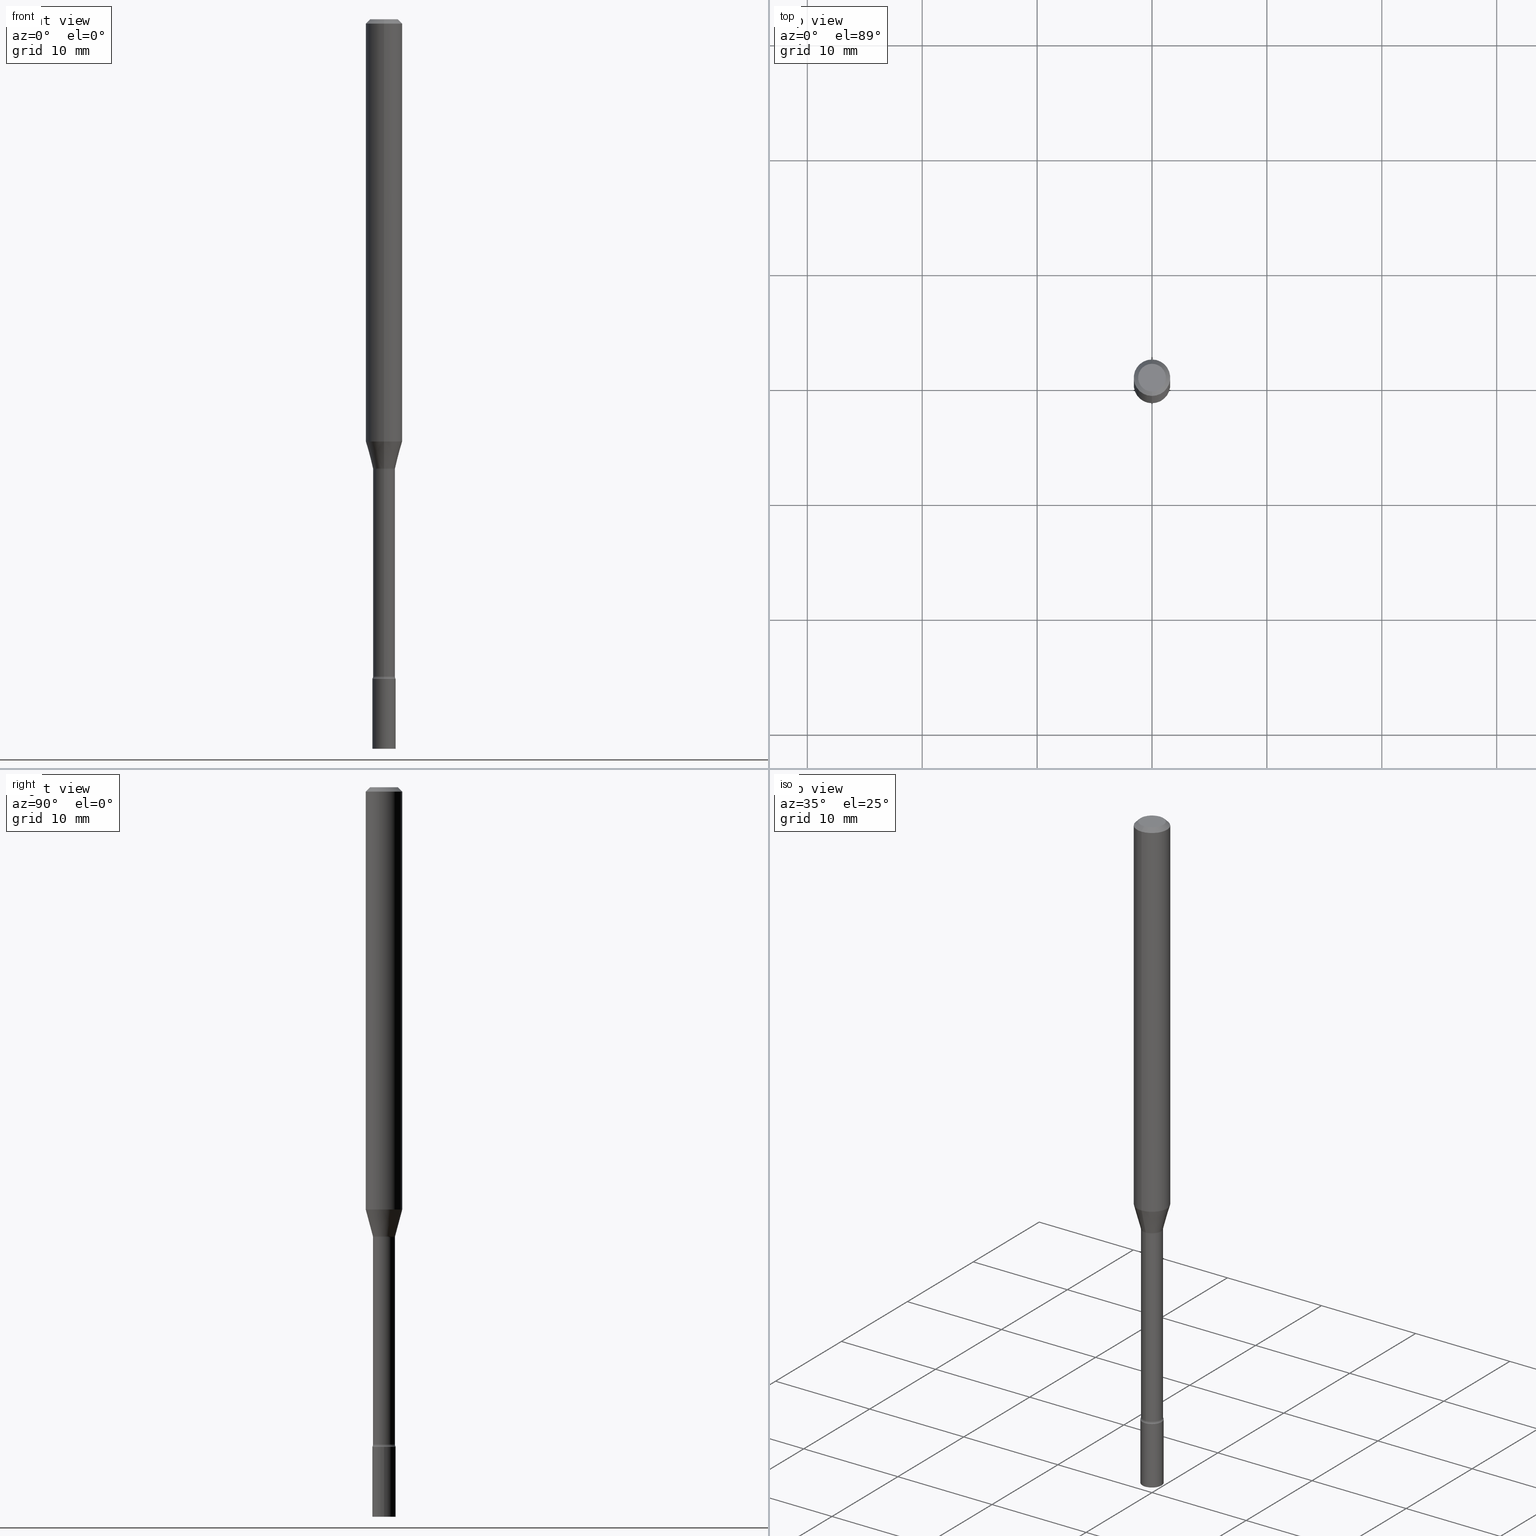
[diagram: canonical four-view strip — front | top / right | iso, engineering-drawing reading convention]
A machine part, canonical four-view strip (front | top / right | iso — engineering-drawing reading convention). The complete STEP part file that produces these views, byte-faithful:
ISO-10303-21;
HEADER;
FILE_DESCRIPTION (( 'STEP AP203' ),
    '1' );
FILE_NAME ('09874.STEP',
    '2024-03-09T02:38:11',
    ( '' ),
    ( '' ),
    'SwSTEP 2.0',
    'SolidWorks 2023',
    '' );
FILE_SCHEMA (( 'CONFIG_CONTROL_DESIGN' ));
ENDSEC;

DATA;
#1 = CARTESIAN_POINT ( 'NONE',  ( 3.761378994903739618E-29, -5.370190104764113807E-15, -1.538092501787273081 ) ) ;
#2 = DIRECTION ( 'NONE',  ( -2.445482954070053556E-29, 3.491461078266697012E-15, 1.000000000000000000 ) ) ;
#3 = AXIS2_PLACEMENT_3D ( 'NONE', #40, #356, #159 ) ;
#4 = AXIS2_PLACEMENT_3D ( 'NONE', #1, #308, #5 ) ;
#5 = DIRECTION ( 'NONE',  ( -6.982962677686265922E-15, -1.000000000000000000, 0.000000000000000000 ) ) ;
#6 = DIRECTION ( 'NONE',  ( -2.445482954070053556E-29, 3.491461078266697012E-15, 1.000000000000000000 ) ) ;
#7 = CALENDAR_DATE ( 2024, 8, 3 ) ;
#8 = ORIENTED_EDGE ( 'NONE', *, *, #255, .F. ) ;
#9 = DIRECTION ( 'NONE',  ( -2.445482954070053837E-29, 3.491461078266697012E-15, 1.000000000000000000 ) ) ;
#10 = CIRCLE ( 'NONE', #293, 0.01499999999999998557 ) ;
#11 = AXIS2_PLACEMENT_3D ( 'NONE', #460, #172, #328 ) ;
#12 = EDGE_LOOP ( 'NONE', ( #405, #448, #152, #379 ) ) ;
#13 = UNCERTAINTY_MEASURE_WITH_UNIT (LENGTH_MEASURE( 1.000000000000000082E-05 ), #478, 'distance_accuracy_value', 'NONE');
#14 = VERTEX_POINT ( 'NONE', #374 ) ;
#15 = EDGE_CURVE ( 'NONE', #111, #75, #138, .T. ) ;
#16 = LINE ( 'NONE', #165, #429 ) ;
#17 = EDGE_CURVE ( 'NONE', #195, #14, #16, .T. ) ;
#18 = EDGE_LOOP ( 'NONE', ( #20, #412, #106, #297 ) ) ;
#19 = ORGANIZATION ( 'UNSPECIFIED', 'UNSPECIFIED', '' ) ;
#20 = ORIENTED_EDGE ( 'NONE', *, *, #473, .F. ) ;
#21 = ORIENTED_EDGE ( 'NONE', *, *, #49, .F. ) ;
#22 = CARTESIAN_POINT ( 'NONE',  ( 3.761378994903739618E-29, -5.370190104764113807E-15, -1.538092501787273081 ) ) ;
#23 = DATE_TIME_ROLE ( 'classification_date' ) ;
#24 = ORIENTED_EDGE ( 'NONE', *, *, #220, .F. ) ;
#25 = CARTESIAN_POINT ( 'NONE',  ( -4.364351673553565158E-16, -0.06250000000000509315, -1.447071934891535072 ) ) ;
#26 = ADVANCED_FACE ( 'NONE', ( #52 ), #132, .T. ) ;
#27 = CC_DESIGN_APPROVAL ( #363, ( #228 ) ) ;
#28 = DIRECTION ( 'NONE',  ( 1.000000000000000000, -6.982962677686265922E-15, 4.876176775795935793E-29 ) ) ;
#29 = EDGE_LOOP ( 'NONE', ( #324, #518, #236, #227 ) ) ;
#30 = DIRECTION ( 'NONE',  ( 1.000000000000000000, -6.982962677686259611E-15, 0.000000000000000000 ) ) ;
#31 = CARTESIAN_POINT ( 'NONE',  ( -3.673038368462599455E-16, -0.05260000000000539244, -1.541974787463810781 ) ) ;
#32 = VERTEX_POINT ( 'NONE', #323 ) ;
#33 = DIRECTION ( 'NONE',  ( 2.445482954070053276E-29, -3.491461078266697012E-15, -1.000000000000000000 ) ) ;
#34 = CC_DESIGN_PERSON_AND_ORGANIZATION_ASSIGNMENT ( #375, #213, ( #127 ) ) ;
#35 = ORIENTED_EDGE ( 'NONE', *, *, #519, .T. ) ;
#36 = APPLICATION_PROTOCOL_DEFINITION ( 'international standard', 'config_control_design', 1994, #89 ) ;
#37 = DIRECTION ( 'NONE',  ( -6.982962677686265922E-15, -1.000000000000000000, 3.491461078266697012E-15 ) ) ;
#38 = VECTOR ( 'NONE', #368, 39.37007874015748143 ) ;
#39 = CIRCLE ( 'NONE', #11, 0.06250000000000000000 ) ;
#40 = CARTESIAN_POINT ( 'NONE',  ( 0.000000000000000000, 0.000000000000000000, 0.000000000000000000 ) ) ;
#41 = EDGE_CURVE ( 'NONE', #223, #280, #167, .T. ) ;
#42 = CARTESIAN_POINT ( 'NONE',  ( 7.071082978708486082E-46, -1.009551547282941926E-31, -2.891487330525031219E-17 ) ) ;
#43 = FACE_OUTER_BOUND ( 'NONE', #459, .T. ) ;
#44 = VECTOR ( 'NONE', #477, 39.37007874015748143 ) ;
#45 = AXIS2_PLACEMENT_3D ( 'NONE', #335, #98, #498 ) ;
#46 = EDGE_LOOP ( 'NONE', ( #294, #225, #413, #208 ) ) ;
#47 = PERSON_AND_ORGANIZATION ( #435, #19 ) ;
#48 = CYLINDRICAL_SURFACE ( 'NONE', #377, 0.06250000000000000000 ) ;
#49 = EDGE_CURVE ( 'NONE', #136, #234, #102, .T. ) ;
#50 = VERTEX_POINT ( 'NONE', #462 ) ;
#51 = AXIS2_PLACEMENT_3D ( 'NONE', #285, #416, #218 ) ;
#52 = FACE_OUTER_BOUND ( 'NONE', #409, .T. ) ;
#53 = VERTEX_POINT ( 'NONE', #300 ) ;
#54 = APPROVAL_ROLE ( '' ) ;
#55 = ORIENTED_EDGE ( 'NONE', *, *, #131, .T. ) ;
#56 = CARTESIAN_POINT ( 'NONE',  ( 2.793185071075058985E-16, 0.03999999999999211131, -2.260000000000000675 ) ) ;
#57 = ORIENTED_EDGE ( 'NONE', *, *, #347, .F. ) ;
#58 = FACE_OUTER_BOUND ( 'NONE', #181, .T. ) ;
#59 = CIRCLE ( 'NONE', #45, 0.04000000000000000083 ) ;
#60 = ORIENTED_EDGE ( 'NONE', *, *, #327, .T. ) ;
#61 = DIRECTION ( 'NONE',  ( 7.105427357600997914E-15, 1.000000000000000000, 0.000000000000000000 ) ) ;
#62 = DIRECTION ( 'NONE',  ( -2.445482954070053837E-29, 3.491461078266697012E-15, 1.000000000000000000 ) ) ;
#63 = DIRECTION ( 'NONE',  ( -6.982962677686265133E-15, -1.000000000000000000, 0.000000000000000000 ) ) ;
#64 = ORIENTED_EDGE ( 'NONE', *, *, #17, .T. ) ;
#65 = CC_DESIGN_PERSON_AND_ORGANIZATION_ASSIGNMENT ( #287, #386, ( #198 ) ) ;
#66 = FACE_OUTER_BOUND ( 'NONE', #456, .T. ) ;
#67 = PERSON_AND_ORGANIZATION ( #435, #19 ) ;
#68 = ORIENTED_EDGE ( 'NONE', *, *, #240, .F. ) ;
#69 = DIRECTION ( 'NONE',  ( -2.445482954070053556E-29, 3.491461078266697012E-15, 1.000000000000000000 ) ) ;
#70 = AXIS2_PLACEMENT_3D ( 'NONE', #394, #69, #348 ) ;
#71 = APPROVAL_PERSON_ORGANIZATION ( #67, #419, #54 ) ;
#72 = CARTESIAN_POINT ( 'NONE',  ( 2.842170943040952512E-16, 0.03999999999999211131, -2.260000000000000675 ) ) ;
#73 = DIRECTION ( 'NONE',  ( -2.445468806185136597E-29, 3.491481338843145583E-15, 1.000000000000000000 ) ) ;
#74 = FACE_OUTER_BOUND ( 'NONE', #415, .T. ) ;
#75 = VERTEX_POINT ( 'NONE', #25 ) ;
#76 = DIRECTION ( 'NONE',  ( -2.445482954070053556E-29, 3.491461078266697012E-15, 1.000000000000000000 ) ) ;
#77 = VECTOR ( 'NONE', #224, 39.37007874015748143 ) ;
#78 = AXIS2_PLACEMENT_3D ( 'NONE', #509, #295, #511 ) ;
#79 = CARTESIAN_POINT ( 'NONE',  ( 0.04000000000000000083, -2.793185071074506290E-16, 1.950470710318374387E-30 ) ) ;
#80 = DIRECTION ( 'NONE',  ( -2.445482954070053556E-29, 3.491461078266697012E-15, 1.000000000000000000 ) ) ;
#81 = CIRCLE ( 'NONE', #340, 0.01500000000000003587 ) ;
#82 = COORDINATED_UNIVERSAL_TIME_OFFSET ( 5, 0, .BEHIND. ) ;
#83 = CARTESIAN_POINT ( 'NONE',  ( -4.287811248607203282E-16, -0.06250000000000005551, -0.01499999999999981209 ) ) ;
#84 = FACE_OUTER_BOUND ( 'NONE', #46, .T. ) ;
#85 = LENGTH_MEASURE_WITH_UNIT ( LENGTH_MEASURE( 0.02539999999999999897 ), #373 );
#86 = ORIENTED_EDGE ( 'NONE', *, *, #151, .T. ) ;
#87 = FACE_OUTER_BOUND ( 'NONE', #29, .T. ) ;
#88 = ORIENTED_EDGE ( 'NONE', *, *, #443, .F. ) ;
#89 = APPLICATION_CONTEXT ( 'configuration controlled 3d designs of mechanical parts and assemblies' ) ;
#90 = AXIS2_PLACEMENT_3D ( 'NONE', #191, #73, #400 ) ;
#91 = LOCAL_TIME ( 21, 38, 11.00000000000000000, #176 ) ;
#92 = DIRECTION ( 'NONE',  ( 2.438088387897960049E-29, -3.491481338843145188E-15, -1.000000000000000000 ) ) ;
#93 = CYLINDRICAL_SURFACE ( 'NONE', #51, 0.04000000000000000083 ) ;
#94 = FACE_OUTER_BOUND ( 'NONE', #108, .T. ) ;
#95 = COORDINATED_UNIVERSAL_TIME_OFFSET ( 5, 0, .BEHIND. ) ;
#96 = ORIENTED_EDGE ( 'NONE', *, *, #310, .T. ) ;
#97 = DATE_AND_TIME ( #502, #481 ) ;
#98 = DIRECTION ( 'NONE',  ( -2.445468806185136597E-29, 3.491481338843145583E-15, 1.000000000000000000 ) ) ;
#99 = SECURITY_CLASSIFICATION_LEVEL ( 'unclassified' ) ;
#100 = AXIS2_PLACEMENT_3D ( 'NONE', #56, #458, #282 ) ;
#101 = ORIENTED_EDGE ( 'NONE', *, *, #499, .T. ) ;
#102 = CIRCLE ( 'NONE', #175, 0.06250000000000000000 ) ;
#103 = DIRECTION ( 'NONE',  ( -6.982962677686265922E-15, -1.000000000000000000, 3.483106191921935554E-15 ) ) ;
#104 = AXIS2_PLACEMENT_3D ( 'NONE', #397, #184, #37 ) ;
#105 = DATE_AND_TIME ( #381, #114 ) ;
#106 = ORIENTED_EDGE ( 'NONE', *, *, #15, .T. ) ;
#107 = DIRECTION ( 'NONE',  ( -6.982962677686265922E-15, -1.000000000000000000, 3.491461078266697012E-15 ) ) ;
#108 = EDGE_LOOP ( 'NONE', ( #393, #319 ) ) ;
#109 = ADVANCED_FACE ( 'NONE', ( #58 ), #265, .T. ) ;
#110 = CARTESIAN_POINT ( 'NONE',  ( 0.04000000000000000083, -8.170066332892960135E-15, -2.260000000000000231 ) ) ;
#111 = VERTEX_POINT ( 'NONE', #504 ) ;
#112 = APPLICATION_CONTEXT ( 'configuration controlled 3d designs of mechanical parts and assemblies' ) ;
#113 = APPROVAL ( #320, 'UNSPECIFIED' ) ;
#114 = LOCAL_TIME ( 21, 38, 11.00000000000000000, #95 ) ;
#115 = DIRECTION ( 'NONE',  ( 6.982962677686265922E-15, 1.000000000000000000, -3.483106191921935554E-15 ) ) ;
#116 = EDGE_LOOP ( 'NONE', ( #101, #417, #306, #68 ) ) ;
#117 = EDGE_CURVE ( 'NONE', #234, #136, #302, .T. ) ;
#118 = CARTESIAN_POINT ( 'NONE',  ( 4.440892098500625669E-16, 0.06250000000000000000, -2.182163173916685633E-16 ) ) ;
#119 = DIRECTION ( 'NONE',  ( -6.982962677686265922E-15, -1.000000000000000000, 3.491461078266697012E-15 ) ) ;
#120 = CIRCLE ( 'NONE', #411, 0.06250000000000000000 ) ;
#121 = CIRCLE ( 'NONE', #222, 0.03760000000000009168 ) ;
#122 = EDGE_CURVE ( 'NONE', #32, #53, #81, .T. ) ;
#123 = DIRECTION ( 'NONE',  ( -6.982962677686265922E-15, -1.000000000000000000, 3.491461078266697012E-15 ) ) ;
#124 = DIRECTION ( 'NONE',  ( 6.982962677686265922E-15, 1.000000000000000000, -3.483106191921935554E-15 ) ) ;
#125 = CC_DESIGN_DATE_AND_TIME_ASSIGNMENT ( #344, #216, ( #228 ) ) ;
#126 = CIRCLE ( 'NONE', #259, 0.03811111260566397985 ) ;
#127 = PRODUCT ( '09874', '09874', '', ( #162 ) ) ;
#128 = CIRCLE ( 'NONE', #177, 0.03811111260566397985 ) ;
#129 = ORIENTED_EDGE ( 'NONE', *, *, #220, .T. ) ;
#130 = DIRECTION ( 'NONE',  ( 1.000000000000000000, -7.105427357601001070E-15, 4.926315260421581725E-29 ) ) ;
#131 = EDGE_CURVE ( 'NONE', #178, #234, #314, .T. ) ;
#132 = PLANE ( 'NONE',  #494 ) ;
#133 = PLANE ( 'NONE',  #100 ) ;
#134 =( GEOMETRIC_REPRESENTATION_CONTEXT ( 3 ) GLOBAL_UNCERTAINTY_ASSIGNED_CONTEXT ( ( #13 ) ) GLOBAL_UNIT_ASSIGNED_CONTEXT ( ( #478, #485, #366 ) ) REPRESENTATION_CONTEXT ( 'NONE', 'WORKASPACE' ) );
#135 = PERSON_AND_ORGANIZATION ( #435, #19 ) ;
#136 = VERTEX_POINT ( 'NONE', #430 ) ;
#137 = APPROVAL_ROLE ( '' ) ;
#138 = LINE ( 'NONE', #372, #38 ) ;
#139 = CARTESIAN_POINT ( 'NONE',  ( 4.440892098500982135E-16, 0.06249999999999995143, -0.01500000000000024751 ) ) ;
#140 = ORIENTED_EDGE ( 'NONE', *, *, #443, .T. ) ;
#141 = DIRECTION ( 'NONE',  ( -2.445482954070053556E-29, 3.491461078266697012E-15, 1.000000000000000000 ) ) ;
#142 = EDGE_CURVE ( 'NONE', #195, #50, #469, .T. ) ;
#143 = AXIS2_PLACEMENT_3D ( 'NONE', #425, #264, #30 ) ;
#144 = EDGE_LOOP ( 'NONE', ( #371, #24, #86, #396 ) ) ;
#145 = TOROIDAL_SURFACE ( 'NONE', #353, 0.05260000000000007725, 0.01499999999999998557 ) ;
#146 = DIRECTION ( 'NONE',  ( 6.982962677686265922E-15, 1.000000000000000000, -3.491461078266697012E-15 ) ) ;
#147 = DIRECTION ( 'NONE',  ( -6.982962677686263555E-15, -1.000000000000000000, 0.000000000000000000 ) ) ;
#148 = CARTESIAN_POINT ( 'NONE',  ( 0.000000000000000000, 0.000000000000000000, 0.000000000000000000 ) ) ;
#149 = CARTESIAN_POINT ( 'NONE',  ( 0.000000000000000000, 0.000000000000000000, 0.000000000000000000 ) ) ;
#150 = DIRECTION ( 'NONE',  ( 2.445482954070053556E-29, -3.491461078266697012E-15, -1.000000000000000000 ) ) ;
#151 = EDGE_CURVE ( 'NONE', #111, #454, #244, .T. ) ;
#152 = ORIENTED_EDGE ( 'NONE', *, *, #206, .T. ) ;
#153 = TOROIDAL_SURFACE ( 'NONE', #238, 0.05260000000000000786, 0.01500000000000003240 ) ;
#154 = AXIS2_PLACEMENT_3D ( 'NONE', #148, #273, #441 ) ;
#155 = CARTESIAN_POINT ( 'NONE',  ( 5.526791476198320695E-29, -7.890702036882735508E-15, -2.260000000000000231 ) ) ;
#156 = ORIENTED_EDGE ( 'NONE', *, *, #49, .T. ) ;
#157 = DIRECTION ( 'NONE',  ( -2.445482954070053556E-29, 3.491461078266697012E-15, 1.000000000000000000 ) ) ;
#158 = CC_DESIGN_PERSON_AND_ORGANIZATION_ASSIGNMENT ( #135, #226, ( #517 ) ) ;
#159 = DIRECTION ( 'NONE',  ( 1.000000000000000000, -6.982962677686265922E-15, 4.876176775795935793E-29 ) ) ;
#160 = AXIS2_PLACEMENT_3D ( 'NONE', #155, #261, #235 ) ;
#161 = CARTESIAN_POINT ( 'NONE',  ( 5.506856330290025342E-29, -7.862331371501561090E-15, -2.251861204020249918 ) ) ;
#162 = MECHANICAL_CONTEXT ( 'NONE', #89, 'mechanical' ) ;
#163 = FACE_OUTER_BOUND ( 'NONE', #424, .T. ) ;
#164 = CARTESIAN_POINT ( 'NONE',  ( 6.113672015462842613E-29, -8.728703347107864943E-15, -2.500000000000000000 ) ) ;
#165 = CARTESIAN_POINT ( 'NONE',  ( -0.04000000000000000083, 2.842170943040400803E-16, -1.967574036101962509E-30 ) ) ;
#166 = CARTESIAN_POINT ( 'NONE',  ( -2.625593966809658857E-16, -0.03760000000000537912, -1.541974787463811003 ) ) ;
#167 = CIRCLE ( 'NONE', #321, 0.01499999999999998557 ) ;
#168 = CC_DESIGN_SECURITY_CLASSIFICATION ( #198, ( #517 ) ) ;
#169 = DIRECTION ( 'NONE',  ( -1.000000000000000000, 6.982962677686265922E-15, -4.876176775795935793E-29 ) ) ;
#170 = PRODUCT_RELATED_PRODUCT_CATEGORY ( 'detail', '', ( #127 ) ) ;
#171 = VERTEX_POINT ( 'NONE', #346 ) ;
#172 = DIRECTION ( 'NONE',  ( -2.445482954070053556E-29, 3.491461078266697012E-15, 1.000000000000000000 ) ) ;
#173 = ORIENTED_EDGE ( 'NONE', *, *, #457, .T. ) ;
#174 = ADVANCED_FACE ( 'NONE', ( #84 ), #153, .F. ) ;
#175 = AXIS2_PLACEMENT_3D ( 'NONE', #278, #212, #193 ) ;
#176 = COORDINATED_UNIVERSAL_TIME_OFFSET ( 5, 0, .BEHIND. ) ;
#177 = AXIS2_PLACEMENT_3D ( 'NONE', #22, #76, #199 ) ;
#178 = VERTEX_POINT ( 'NONE', #484 ) ;
#179 = DIRECTION ( 'NONE',  ( -6.982962677686265922E-15, -1.000000000000000000, 0.000000000000000000 ) ) ;
#180 = DESIGN_CONTEXT ( 'detailed design', #112, 'design' ) ;
#181 = EDGE_LOOP ( 'NONE', ( #129, #464, #299, #329 ) ) ;
#182 = EDGE_LOOP ( 'NONE', ( #88, #8, #55, #288 ) ) ;
#183 = EDGE_CURVE ( 'NONE', #50, #195, #351, .T. ) ;
#184 = DIRECTION ( 'NONE',  ( -2.445482954070053556E-29, 3.491461078266697012E-15, 1.000000000000000000 ) ) ;
#185 = SHAPE_DEFINITION_REPRESENTATION ( #245, #325 ) ;
#186 = VECTOR ( 'NONE', #463, 39.37007874015748143 ) ;
#187 = APPROVAL_PERSON_ORGANIZATION ( #268, #363, #382 ) ;
#188 = CALENDAR_DATE ( 2024, 8, 3 ) ;
#189 = FACE_OUTER_BOUND ( 'NONE', #116, .T. ) ;
#190 = CYLINDRICAL_SURFACE ( 'NONE', #209, 0.03760000000000004311 ) ;
#191 = CARTESIAN_POINT ( 'NONE',  ( 6.113672015462842613E-29, -8.728703347107864943E-15, -2.500000000000000000 ) ) ;
#192 = EDGE_LOOP ( 'NONE', ( #60, #276, #21, #292 ) ) ;
#193 = DIRECTION ( 'NONE',  ( -6.982962677686265922E-15, -1.000000000000000000, 3.483106191921935554E-15 ) ) ;
#194 = CARTESIAN_POINT ( 'NONE',  ( 3.316907271900976096E-16, 0.04749999999999999362, -1.803018378702932620E-16 ) ) ;
#195 = VERTEX_POINT ( 'NONE', #248 ) ;
#196 = APPROVAL_DATE_TIME ( #512, #419 ) ;
#197 = CIRCLE ( 'NONE', #143, 0.04000000000000000083 ) ;
#198 = SECURITY_CLASSIFICATION ( '', '', #99 ) ;
#199 = DIRECTION ( 'NONE',  ( -6.982962677686265922E-15, -1.000000000000000000, 0.000000000000000000 ) ) ;
#200 = CARTESIAN_POINT ( 'NONE',  ( 5.526791476198320695E-29, -7.890702036882735508E-15, -2.260000000000000231 ) ) ;
#201 = DIRECTION ( 'NONE',  ( -2.445482954070053556E-29, 3.491461078266697012E-15, 1.000000000000000000 ) ) ;
#202 = EDGE_CURVE ( 'NONE', #454, #53, #367, .T. ) ;
#203 = AXIS2_PLACEMENT_3D ( 'NONE', #334, #141, #103 ) ;
#204 = AXIS2_PLACEMENT_3D ( 'NONE', #149, #520, #465 ) ;
#205 = ADVANCED_FACE ( 'NONE', ( #87 ), #250, .T. ) ;
#206 = EDGE_CURVE ( 'NONE', #171, #303, #10, .T. ) ;
#207 = ORIENTED_EDGE ( 'NONE', *, *, #41, .T. ) ;
#208 = ORIENTED_EDGE ( 'NONE', *, *, #151, .F. ) ;
#209 = AXIS2_PLACEMENT_3D ( 'NONE', #432, #157, #107 ) ;
#210 = CONICAL_SURFACE ( 'NONE', #4, 0.03811111260566397985, 0.2617993877991502960 ) ;
#211 = EDGE_CURVE ( 'NONE', #420, #178, #221, .T. ) ;
#212 = DIRECTION ( 'NONE',  ( -2.445482954070053556E-29, 3.491461078266697012E-15, 1.000000000000000000 ) ) ;
#213 = PERSON_AND_ORGANIZATION_ROLE ( 'design_owner' ) ;
#214 = ORIENTED_EDGE ( 'NONE', *, *, #258, .T. ) ;
#215 = ADVANCED_FACE ( 'NONE', ( #94 ), #133, .F. ) ;
#216 = DATE_TIME_ROLE ( 'creation_date' ) ;
#217 = ORIENTED_EDGE ( 'NONE', *, *, #338, .F. ) ;
#218 = DIRECTION ( 'NONE',  ( 1.000000000000000000, -6.982962677686265922E-15, 4.876176775795935793E-29 ) ) ;
#219 = DIRECTION ( 'NONE',  ( -2.445482954070053556E-29, 3.491461078266697012E-15, 1.000000000000000000 ) ) ;
#220 = EDGE_CURVE ( 'NONE', #111, #32, #126, .T. ) ;
#221 = CIRCLE ( 'NONE', #516, 0.04749999999999999362 ) ;
#222 = AXIS2_PLACEMENT_3D ( 'NONE', #426, #290, #63 ) ;
#223 = VERTEX_POINT ( 'NONE', #501 ) ;
#224 = DIRECTION ( 'NONE',  ( -2.445482954070053837E-29, 3.491461078266697012E-15, 1.000000000000000000 ) ) ;
#225 = ORIENTED_EDGE ( 'NONE', *, *, #122, .T. ) ;
#226 = PERSON_AND_ORGANIZATION_ROLE ( 'design_supplier' ) ;
#227 = ORIENTED_EDGE ( 'NONE', *, *, #258, .F. ) ;
#228 = PRODUCT_DEFINITION ( 'UNKNOWN', '', #517, #180 ) ;
#229 = FACE_OUTER_BOUND ( 'NONE', #246, .T. ) ;
#230 = DIRECTION ( 'NONE',  ( -2.445482954070053556E-29, 3.491461078266697012E-15, 1.000000000000000000 ) ) ;
#231 = VECTOR ( 'NONE', #62, 39.37007874015748143 ) ;
#232 = AXIS2_PLACEMENT_3D ( 'NONE', #200, #440, #243 ) ;
#233 = LINE ( 'NONE', #118, #186 ) ;
#234 = VERTEX_POINT ( 'NONE', #139 ) ;
#235 = DIRECTION ( 'NONE',  ( -6.982962677686265922E-15, -1.000000000000000000, 6.829619984160658243E-15 ) ) ;
#236 = ORIENTED_EDGE ( 'NONE', *, *, #437, .T. ) ;
#237 = CYLINDRICAL_SURFACE ( 'NONE', #204, 0.03760000000000004311 ) ;
#238 = AXIS2_PLACEMENT_3D ( 'NONE', #242, #6, #402 ) ;
#239 = DIRECTION ( 'NONE',  ( -6.982962677686265922E-15, -1.000000000000000000, 3.491461078266697012E-15 ) ) ;
#240 = EDGE_CURVE ( 'NONE', #171, #454, #332, .T. ) ;
#241 = DIRECTION ( 'NONE',  ( -4.851104656540964275E-15, -0.7071067811865500152, -0.7071067811865450192 ) ) ;
#242 = CARTESIAN_POINT ( 'NONE',  ( 3.770851242666705328E-29, -5.383776195396521708E-15, -1.541974787463811003 ) ) ;
#243 = DIRECTION ( 'NONE',  ( -6.982962677686265922E-15, -1.000000000000000000, 6.829619984160658243E-15 ) ) ;
#244 = CIRCLE ( 'NONE', #376, 0.01500000000000003587 ) ;
#245 = PRODUCT_DEFINITION_SHAPE ( 'NONE', 'NONE',  #228 ) ;
#246 = EDGE_LOOP ( 'NONE', ( #217, #35, #96, #433 ) ) ;
#247 = LINE ( 'NONE', #79, #496 ) ;
#248 = CARTESIAN_POINT ( 'NONE',  ( -0.04000000000000000083, -8.025508492142646404E-15, -2.500000000000000000 ) ) ;
#249 = VERTEX_POINT ( 'NONE', #428 ) ;
#250 = CYLINDRICAL_SURFACE ( 'NONE', #3, 0.04000000000000000083 ) ;
#251 = CC_DESIGN_PERSON_AND_ORGANIZATION_ASSIGNMENT ( #378, #506, ( #517 ) ) ;
#252 = ORIENTED_EDGE ( 'NONE', *, *, #183, .F. ) ;
#253 = CLOSED_SHELL ( 'NONE', ( #482, #318, #205, #26 ) ) ;
#254 = DIRECTION ( 'NONE',  ( 7.105427357601001859E-15, 1.000000000000000000, 0.000000000000000000 ) ) ;
#255 = EDGE_CURVE ( 'NONE', #178, #420, #418, .T. ) ;
#256 = MANIFOLD_SOLID_BREP ( 'Body-Move/Copy2[2]', #274 ) ;
#257 = VERTEX_POINT ( 'NONE', #110 ) ;
#258 = EDGE_CURVE ( 'NONE', #14, #257, #197, .T. ) ;
#259 = AXIS2_PLACEMENT_3D ( 'NONE', #452, #219, #179 ) ;
#260 = DIRECTION ( 'NONE',  ( 1.000000000000000000, -7.105427357601001070E-15, 4.926315260421581725E-29 ) ) ;
#261 = DIRECTION ( 'NONE',  ( -2.445482954070053556E-29, 3.491461078266697012E-15, 1.000000000000000000 ) ) ;
#262 = CARTESIAN_POINT ( 'NONE',  ( 3.538789750090419210E-29, -5.052395338125876196E-15, -1.447071934891535294 ) ) ;
#263 = DIRECTION ( 'NONE',  ( -2.445482954070053556E-29, 3.491461078266697012E-15, 1.000000000000000000 ) ) ;
#264 = DIRECTION ( 'NONE',  ( -2.445468806185136597E-29, 3.491481338843145583E-15, 1.000000000000000000 ) ) ;
#265 = CONICAL_SURFACE ( 'NONE', #70, 0.03811111260566397985, 0.2617993877991502960 ) ;
#266 = CC_DESIGN_APPROVAL ( #419, ( #517 ) ) ;
#267 = ORIENTED_EDGE ( 'NONE', *, *, #211, .T. ) ;
#268 = PERSON_AND_ORGANIZATION ( #435, #19 ) ;
#269 = FACE_OUTER_BOUND ( 'NONE', #182, .T. ) ;
#270 = AXIS2_PLACEMENT_3D ( 'NONE', #389, #515, #28 ) ;
#271 = AXIS2_PLACEMENT_3D ( 'NONE', #434, #468, #391 ) ;
#272 = DIRECTION ( 'NONE',  ( 1.839019923739600710E-15, 0.2588190451025250138, 0.9659258262890670910 ) ) ;
#273 = DIRECTION ( 'NONE',  ( 0.000000000000000000, 0.000000000000000000, 1.000000000000000000 ) ) ;
#274 = CLOSED_SHELL ( 'NONE', ( #174, #388, #422, #476, #427, #109, #410, #492, #343, #279, #215, #392, #283, #384 ) ) ;
#275 = VECTOR ( 'NONE', #9, 39.37007874015748143 ) ;
#276 = ORIENTED_EDGE ( 'NONE', *, *, #338, .T. ) ;
#277 = CC_DESIGN_DATE_AND_TIME_ASSIGNMENT ( #105, #23, ( #198 ) ) ;
#278 = CARTESIAN_POINT ( 'NONE',  ( 3.668224431105087288E-31, -5.237191617400056217E-17, -0.01500000000000003067 ) ) ;
#279 = ADVANCED_FACE ( 'NONE', ( #66 ), #475, .F. ) ;
#280 = VERTEX_POINT ( 'NONE', #72 ) ;
#281 = AXIS2_PLACEMENT_3D ( 'NONE', #298, #230, #385 ) ;
#282 = DIRECTION ( 'NONE',  ( -6.982962677686265922E-15, -1.000000000000000000, 3.491461078266697012E-15 ) ) ;
#283 = ADVANCED_FACE ( 'NONE', ( #74 ), #190, .T. ) ;
#284 = ORIENTED_EDGE ( 'NONE', *, *, #503, .T. ) ;
#285 = CARTESIAN_POINT ( 'NONE',  ( 0.000000000000000000, 0.000000000000000000, 0.000000000000000000 ) ) ;
#286 = EDGE_CURVE ( 'NONE', #303, #280, #436, .T. ) ;
#287 = PERSON_AND_ORGANIZATION ( #435, #19 ) ;
#288 = ORIENTED_EDGE ( 'NONE', *, *, #117, .T. ) ;
#289 = CARTESIAN_POINT ( 'NONE',  ( -2.625593966810038989E-16, -0.03760000000000004311, 1.312789365428279582E-16 ) ) ;
#290 = DIRECTION ( 'NONE',  ( -2.445482954070053556E-29, 3.491461078266697012E-15, 1.000000000000000000 ) ) ;
#291 = CALENDAR_DATE ( 2024, 8, 3 ) ;
#292 = ORIENTED_EDGE ( 'NONE', *, *, #310, .F. ) ;
#293 = AXIS2_PLACEMENT_3D ( 'NONE', #309, #480, #439 ) ;
#294 = ORIENTED_EDGE ( 'NONE', *, *, #350, .F. ) ;
#295 = DIRECTION ( 'NONE',  ( -2.445482954070053556E-29, 3.491461078266697012E-15, 1.000000000000000000 ) ) ;
#296 = CC_DESIGN_PERSON_AND_ORGANIZATION_ASSIGNMENT ( #380, #505, ( #228 ) ) ;
#297 = ORIENTED_EDGE ( 'NONE', *, *, #519, .F. ) ;
#298 = CARTESIAN_POINT ( 'NONE',  ( 7.071082978708486082E-46, -1.009551547282941926E-31, -2.891487330525031219E-17 ) ) ;
#299 = ORIENTED_EDGE ( 'NONE', *, *, #327, .F. ) ;
#300 = CARTESIAN_POINT ( 'NONE',  ( 2.671640686458530486E-16, 0.03759999999999461689, -1.541974787463811003 ) ) ;
#301 = FACE_OUTER_BOUND ( 'NONE', #12, .T. ) ;
#302 = CIRCLE ( 'NONE', #203, 0.06250000000000000000 ) ;
#303 = VERTEX_POINT ( 'NONE', #472 ) ;
#304 = LOCAL_TIME ( 21, 38, 11.00000000000000000, #82 ) ;
#305 = FACE_OUTER_BOUND ( 'NONE', #461, .T. ) ;
#306 = ORIENTED_EDGE ( 'NONE', *, *, #202, .F. ) ;
#307 = FACE_OUTER_BOUND ( 'NONE', #18, .T. ) ;
#308 = DIRECTION ( 'NONE',  ( -2.445482954070053556E-29, 3.491461078266697012E-15, 1.000000000000000000 ) ) ;
#309 = CARTESIAN_POINT ( 'NONE',  ( -3.673038368462429850E-16, -0.05260000000000793902, -2.251861204020249918 ) ) ;
#310 = EDGE_CURVE ( 'NONE', #75, #136, #395, .T. ) ;
#311 = CIRCLE ( 'NONE', #271, 0.03759999999999999454 ) ;
#312 = TOROIDAL_SURFACE ( 'NONE', #470, 0.05260000000000007725, 0.01499999999999998557 ) ;
#313 = DIRECTION ( 'NONE',  ( -2.445468806185136877E-29, 3.491481338843145188E-15, 1.000000000000000000 ) ) ;
#314 = LINE ( 'NONE', #403, #44 ) ;
#315 = CARTESIAN_POINT ( 'NONE',  ( 3.668224431105087288E-31, -5.237191617400056217E-17, -0.01500000000000003067 ) ) ;
#316 = DIRECTION ( 'NONE',  ( -2.445468806185136597E-29, 3.491481338843145583E-15, 1.000000000000000000 ) ) ;
#317 = AXIS2_PLACEMENT_3D ( 'NONE', #407, #2, #447 ) ;
#318 = ADVANCED_FACE ( 'NONE', ( #305 ), #349, .T. ) ;
#319 = ORIENTED_EDGE ( 'NONE', *, *, #457, .F. ) ;
#320 = APPROVAL_STATUS ( 'not_yet_approved' ) ;
#321 = AXIS2_PLACEMENT_3D ( 'NONE', #491, #130, #254 ) ;
#322 = APPROVAL_PERSON_ORGANIZATION ( #47, #113, #137 ) ;
#323 = CARTESIAN_POINT ( 'NONE',  ( 3.574424759935164647E-16, 0.03811111260565860914, -1.538092501787273081 ) ) ;
#324 = ORIENTED_EDGE ( 'NONE', *, *, #17, .F. ) ;
#325 = ADVANCED_BREP_SHAPE_REPRESENTATION ( '09874', ( #414, #256, #154 ), #134 ) ;
#326 = COORDINATED_UNIVERSAL_TIME_OFFSET ( 5, 0, .BEHIND. ) ;
#327 = EDGE_CURVE ( 'NONE', #75, #249, #120, .T. ) ;
#328 = DIRECTION ( 'NONE',  ( -6.982962677686265922E-15, -1.000000000000000000, 4.370956789862821150E-15 ) ) ;
#329 = ORIENTED_EDGE ( 'NONE', *, *, #15, .F. ) ;
#330 = AXIS2_PLACEMENT_3D ( 'NONE', #315, #483, #124 ) ;
#331 = ORIENTED_EDGE ( 'NONE', *, *, #142, .F. ) ;
#332 = LINE ( 'NONE', #289, #77 ) ;
#333 = COORDINATED_UNIVERSAL_TIME_OFFSET ( 5, 0, .BEHIND. ) ;
#334 = CARTESIAN_POINT ( 'NONE',  ( 3.668224431105087288E-31, -5.237191617400056217E-17, -0.01500000000000003067 ) ) ;
#335 = CARTESIAN_POINT ( 'NONE',  ( 5.526759501978408888E-29, -7.890747825785510097E-15, -2.260000000000000231 ) ) ;
#336 = APPROVAL_DATE_TIME ( #455, #113 ) ;
#337 = ORIENTED_EDGE ( 'NONE', *, *, #255, .T. ) ;
#338 = EDGE_CURVE ( 'NONE', #249, #234, #233, .T. ) ;
#339 = DIRECTION ( 'NONE',  ( -6.982962677686265922E-15, -1.000000000000000000, 4.370956789862821150E-15 ) ) ;
#340 = AXIS2_PLACEMENT_3D ( 'NONE', #467, #260, #61 ) ;
#341 = CIRCLE ( 'NONE', #232, 0.04000000000000000083 ) ;
#342 = CARTESIAN_POINT ( 'NONE',  ( -4.364351673553916201E-16, -0.06250000000000000000, 2.182163173916685633E-16 ) ) ;
#343 = ADVANCED_FACE ( 'NONE', ( #269 ), #390, .T. ) ;
#344 = DATE_AND_TIME ( #188, #91 ) ;
#345 = DIRECTION ( 'NONE',  ( -2.445482954070053556E-29, 3.491461078266697012E-15, 1.000000000000000000 ) ) ;
#346 = CARTESIAN_POINT ( 'NONE',  ( -2.625593966809491224E-16, -0.03760000000000795345, -2.251861204020249918 ) ) ;
#347 = EDGE_CURVE ( 'NONE', #53, #454, #311, .T. ) ;
#348 = DIRECTION ( 'NONE',  ( -6.982962677686265922E-15, -1.000000000000000000, 0.000000000000000000 ) ) ;
#349 = PLANE ( 'NONE',  #270 ) ;
#350 = EDGE_CURVE ( 'NONE', #32, #111, #128, .T. ) ;
#351 = CIRCLE ( 'NONE', #488, 0.04000000000000000083 ) ;
#352 = ORIENTED_EDGE ( 'NONE', *, *, #453, .F. ) ;
#353 = AXIS2_PLACEMENT_3D ( 'NONE', #161, #80, #119 ) ;
#354 = FACE_OUTER_BOUND ( 'NONE', #144, .T. ) ;
#355 = LINE ( 'NONE', #357, #508 ) ;
#356 = DIRECTION ( 'NONE',  ( -2.445468806185136597E-29, 3.491481338843145583E-15, 1.000000000000000000 ) ) ;
#357 = CARTESIAN_POINT ( 'NONE',  ( 2.707957421369348146E-16, 0.03811111260565860914, -1.538092501787273081 ) ) ;
#358 = DIRECTION ( 'NONE',  ( -2.445482954070053556E-29, 3.491461078266697012E-15, 1.000000000000000000 ) ) ;
#359 = LOCAL_TIME ( 21, 38, 11.00000000000000000, #326 ) ;
#360 = LINE ( 'NONE', #365, #275 ) ;
#361 = EDGE_CURVE ( 'NONE', #223, #171, #431, .T. ) ;
#362 = CYLINDRICAL_SURFACE ( 'NONE', #489, 0.06250000000000000000 ) ;
#363 = APPROVAL ( #369, 'UNSPECIFIED' ) ;
#364 = ORIENTED_EDGE ( 'NONE', *, *, #437, .F. ) ;
#365 = CARTESIAN_POINT ( 'NONE',  ( 2.671640686457979269E-16, 0.03760000000000004311, -1.312789365428279582E-16 ) ) ;
#366 =( NAMED_UNIT ( * ) SI_UNIT ( $, .STERADIAN. ) SOLID_ANGLE_UNIT ( ) );
#367 = CIRCLE ( 'NONE', #317, 0.03759999999999999454 ) ;
#368 = DIRECTION ( 'NONE',  ( -1.807323732225330534E-15, -0.2588190451025182415, 0.9659258262890689783 ) ) ;
#369 = APPROVAL_STATUS ( 'not_yet_approved' ) ;
#370 = AXIS2_PLACEMENT_3D ( 'NONE', #513, #150, #115 ) ;
#371 = ORIENTED_EDGE ( 'NONE', *, *, #122, .F. ) ;
#372 = CARTESIAN_POINT ( 'NONE',  ( -2.661284769304125242E-16, -0.03811111260566935055, -1.538092501787273081 ) ) ;
#373 =( LENGTH_UNIT ( ) NAMED_UNIT ( * ) SI_UNIT ( $, .METRE. ) );
#374 = CARTESIAN_POINT ( 'NONE',  ( -0.04000000000000000083, -8.025508492142646404E-15, -2.260000000000000231 ) ) ;
#375 = PERSON_AND_ORGANIZATION ( #435, #19 ) ;
#376 = AXIS2_PLACEMENT_3D ( 'NONE', #31, #510, #147 ) ;
#377 = AXIS2_PLACEMENT_3D ( 'NONE', #399, #201, #123 ) ;
#378 = PERSON_AND_ORGANIZATION ( #435, #19 ) ;
#379 = ORIENTED_EDGE ( 'NONE', *, *, #286, .T. ) ;
#380 = PERSON_AND_ORGANIZATION ( #435, #19 ) ;
#381 = CALENDAR_DATE ( 2024, 8, 3 ) ;
#382 = APPROVAL_ROLE ( '' ) ;
#383 = ORIENTED_EDGE ( 'NONE', *, *, #131, .F. ) ;
#384 = ADVANCED_FACE ( 'NONE', ( #354 ), #438, .F. ) ;
#385 = DIRECTION ( 'NONE',  ( -6.982962677686266711E-15, -1.000000000000000000, 3.491461078266697012E-15 ) ) ;
#386 = PERSON_AND_ORGANIZATION_ROLE ( 'classification_officer' ) ;
#387 = ORIENTED_EDGE ( 'NONE', *, *, #183, .T. ) ;
#388 = ADVANCED_FACE ( 'NONE', ( #189 ), #237, .T. ) ;
#389 = CARTESIAN_POINT ( 'NONE',  ( 5.526759501978408888E-29, -7.890747825785510097E-15, -2.260000000000000231 ) ) ;
#390 = CONICAL_SURFACE ( 'NONE', #370, 0.06250000000000000000, 0.7853981633974483900 ) ;
#391 = DIRECTION ( 'NONE',  ( -6.982962677686265922E-15, -1.000000000000000000, 0.000000000000000000 ) ) ;
#392 = ADVANCED_FACE ( 'NONE', ( #301 ), #312, .F. ) ;
#393 = ORIENTED_EDGE ( 'NONE', *, *, #286, .F. ) ;
#394 = CARTESIAN_POINT ( 'NONE',  ( 3.761378994903739618E-29, -5.370190104764113807E-15, -1.538092501787273081 ) ) ;
#395 = LINE ( 'NONE', #342, #231 ) ;
#396 = ORIENTED_EDGE ( 'NONE', *, *, #202, .T. ) ;
#397 = CARTESIAN_POINT ( 'NONE',  ( 3.770851242666705328E-29, -5.383776195396521708E-15, -1.541974787463811003 ) ) ;
#398 = CC_DESIGN_APPROVAL ( #113, ( #198 ) ) ;
#399 = CARTESIAN_POINT ( 'NONE',  ( 0.000000000000000000, 0.000000000000000000, 0.000000000000000000 ) ) ;
#400 = DIRECTION ( 'NONE',  ( 1.000000000000000000, -6.982962677686259611E-15, 0.000000000000000000 ) ) ;
#401 = DIMENSIONAL_EXPONENTS ( 1.000000000000000000, 0.000000000000000000, 0.000000000000000000, 0.000000000000000000, 0.000000000000000000, 0.000000000000000000, 0.000000000000000000 ) ;
#402 = DIRECTION ( 'NONE',  ( -6.982962677686265922E-15, -1.000000000000000000, 3.491461078266697012E-15 ) ) ;
#403 = CARTESIAN_POINT ( 'NONE',  ( 4.364351673553919652E-16, 0.06249999999999995143, -0.01500000000000024751 ) ) ;
#404 = FACE_OUTER_BOUND ( 'NONE', #474, .T. ) ;
#405 = ORIENTED_EDGE ( 'NONE', *, *, #41, .F. ) ;
#406 = DIRECTION ( 'NONE',  ( -2.445482954070053556E-29, 3.491461078266697012E-15, 1.000000000000000000 ) ) ;
#407 = CARTESIAN_POINT ( 'NONE',  ( 3.770873058348543263E-29, -5.383744954098458291E-15, -1.541974787463811003 ) ) ;
#408 = CARTESIAN_POINT ( 'NONE',  ( 0.000000000000000000, 0.000000000000000000, 0.000000000000000000 ) ) ;
#409 = EDGE_LOOP ( 'NONE', ( #252, #331 ) ) ;
#410 = ADVANCED_FACE ( 'NONE', ( #307 ), #210, .T. ) ;
#411 = AXIS2_PLACEMENT_3D ( 'NONE', #262, #345, #339 ) ;
#412 = ORIENTED_EDGE ( 'NONE', *, *, #350, .T. ) ;
#413 = ORIENTED_EDGE ( 'NONE', *, *, #347, .T. ) ;
#414 = MANIFOLD_SOLID_BREP ( 'Body-Move/Copy2[1]', #253 ) ;
#415 = EDGE_LOOP ( 'NONE', ( #352, #493, #500, #57 ) ) ;
#416 = DIRECTION ( 'NONE',  ( -2.445468806185136597E-29, 3.491481338843145583E-15, 1.000000000000000000 ) ) ;
#417 = ORIENTED_EDGE ( 'NONE', *, *, #453, .T. ) ;
#418 = CIRCLE ( 'NONE', #281, 0.04749999999999999362 ) ;
#419 = APPROVAL ( #466, 'UNSPECIFIED' ) ;
#420 = VERTEX_POINT ( 'NONE', #479 ) ;
#421 = CARTESIAN_POINT ( 'NONE',  ( 5.506856330290025342E-29, -7.862331371501561090E-15, -2.251861204020249918 ) ) ;
#422 = ADVANCED_FACE ( 'NONE', ( #163 ), #145, .F. ) ;
#423 = DIRECTION ( 'NONE',  ( -6.982962677686265922E-15, -1.000000000000000000, 3.491461078266697012E-15 ) ) ;
#424 = EDGE_LOOP ( 'NONE', ( #446, #207, #173, #471 ) ) ;
#425 = CARTESIAN_POINT ( 'NONE',  ( 5.526759501978408888E-29, -7.890747825785510097E-15, -2.260000000000000231 ) ) ;
#426 = CARTESIAN_POINT ( 'NONE',  ( 5.506888189363188593E-29, -7.862285747495485924E-15, -2.251861204020249918 ) ) ;
#427 = ADVANCED_FACE ( 'NONE', ( #486 ), #48, .T. ) ;
#428 = CARTESIAN_POINT ( 'NONE',  ( 4.440892098500976219E-16, 0.06249999999999491379, -1.447071934891535516 ) ) ;
#429 = VECTOR ( 'NONE', #490, 39.37007874015748143 ) ;
#430 = CARTESIAN_POINT ( 'NONE',  ( -4.364351673553912750E-16, -0.06250000000000005551, -0.01499999999999981209 ) ) ;
#431 = CIRCLE ( 'NONE', #78, 0.03760000000000009168 ) ;
#432 = CARTESIAN_POINT ( 'NONE',  ( 0.000000000000000000, 0.000000000000000000, 0.000000000000000000 ) ) ;
#433 = ORIENTED_EDGE ( 'NONE', *, *, #117, .F. ) ;
#434 = CARTESIAN_POINT ( 'NONE',  ( 3.770873058348543263E-29, -5.383744954098458291E-15, -1.541974787463811003 ) ) ;
#435 = PERSON ( 'UNSPECIFIED', 'UNSPECIFIED', 'UNSPECIFIED', ('UNSPECIFIED'), ('UNSPECIFIED'), ('UNSPECIFIED') ) ;
#436 = CIRCLE ( 'NONE', #160, 0.04000000000000000083 ) ;
#437 = EDGE_CURVE ( 'NONE', #50, #257, #247, .T. ) ;
#438 = TOROIDAL_SURFACE ( 'NONE', #104, 0.05260000000000000786, 0.01500000000000003240 ) ;
#439 = DIRECTION ( 'NONE',  ( -6.982962677686266711E-15, -1.000000000000000000, 0.000000000000000000 ) ) ;
#440 = DIRECTION ( 'NONE',  ( -2.445482954070053556E-29, 3.491461078266697012E-15, 1.000000000000000000 ) ) ;
#441 = DIRECTION ( 'NONE',  ( 1.000000000000000000, 0.000000000000000000, 0.000000000000000000 ) ) ;
#442 = CONICAL_SURFACE ( 'NONE', #330, 0.06250000000000000000, 0.7853981633974483900 ) ;
#443 = EDGE_CURVE ( 'NONE', #420, #136, #444, .T. ) ;
#444 = LINE ( 'NONE', #83, #451 ) ;
#445 = APPLICATION_PROTOCOL_DEFINITION ( 'international standard', 'config_control_design', 1994, #112 ) ;
#446 = ORIENTED_EDGE ( 'NONE', *, *, #361, .F. ) ;
#447 = DIRECTION ( 'NONE',  ( -6.982962677686265922E-15, -1.000000000000000000, 0.000000000000000000 ) ) ;
#448 = ORIENTED_EDGE ( 'NONE', *, *, #499, .F. ) ;
#449 = APPROVAL_DATE_TIME ( #97, #363 ) ;
#450 = CARTESIAN_POINT ( 'NONE',  ( 2.793185071075117657E-16, 0.03999999999999127864, -2.500000000000000000 ) ) ;
#451 = VECTOR ( 'NONE', #241, 39.37007874015748143 ) ;
#452 = CARTESIAN_POINT ( 'NONE',  ( 3.761378994903739618E-29, -5.370190104764113807E-15, -1.538092501787273081 ) ) ;
#453 = EDGE_CURVE ( 'NONE', #223, #53, #360, .T. ) ;
#454 = VERTEX_POINT ( 'NONE', #166 ) ;
#455 = DATE_AND_TIME ( #291, #304 ) ;
#456 = EDGE_LOOP ( 'NONE', ( #337, #267 ) ) ;
#457 = EDGE_CURVE ( 'NONE', #280, #303, #341, .T. ) ;
#458 = DIRECTION ( 'NONE',  ( -2.445482954070053276E-29, 3.491461078266697012E-15, 1.000000000000000000 ) ) ;
#459 = EDGE_LOOP ( 'NONE', ( #514, #140, #156, #383 ) ) ;
#460 = CARTESIAN_POINT ( 'NONE',  ( 3.538789750090419210E-29, -5.052395338125876196E-15, -1.447071934891535294 ) ) ;
#461 = EDGE_LOOP ( 'NONE', ( #284, #214 ) ) ;
#462 = CARTESIAN_POINT ( 'NONE',  ( 0.04000000000000000083, -9.008021854215314980E-15, -2.500000000000000000 ) ) ;
#463 = DIRECTION ( 'NONE',  ( -2.445482954070053837E-29, 3.491461078266697012E-15, 1.000000000000000000 ) ) ;
#464 = ORIENTED_EDGE ( 'NONE', *, *, #473, .T. ) ;
#465 = DIRECTION ( 'NONE',  ( -6.982962677686265922E-15, -1.000000000000000000, 3.491461078266697012E-15 ) ) ;
#466 = APPROVAL_STATUS ( 'not_yet_approved' ) ;
#467 = CARTESIAN_POINT ( 'NONE',  ( 3.737454790098504217E-16, 0.05259999999999462328, -1.541974787463811225 ) ) ;
#468 = DIRECTION ( 'NONE',  ( -2.445482954070053556E-29, 3.491461078266697012E-15, 1.000000000000000000 ) ) ;
#469 = CIRCLE ( 'NONE', #90, 0.04000000000000000083 ) ;
#470 = AXIS2_PLACEMENT_3D ( 'NONE', #421, #406, #239 ) ;
#471 = ORIENTED_EDGE ( 'NONE', *, *, #206, .F. ) ;
#472 = CARTESIAN_POINT ( 'NONE',  ( -2.793185071073953101E-16, -0.04000000000000789036, -2.259999999999999787 ) ) ;
#473 = EDGE_CURVE ( 'NONE', #32, #249, #355, .T. ) ;
#474 = EDGE_LOOP ( 'NONE', ( #387, #64, #495, #364 ) ) ;
#475 = PLANE ( 'NONE',  #507 ) ;
#476 = ADVANCED_FACE ( 'NONE', ( #43 ), #442, .T. ) ;
#477 = DIRECTION ( 'NONE',  ( 4.937700262164548042E-15, 0.7071067811865451302, -0.7071067811865499042 ) ) ;
#478 =( CONVERSION_BASED_UNIT ( 'INCH', #85 ) LENGTH_UNIT ( ) NAMED_UNIT ( #401 ) );
#479 = CARTESIAN_POINT ( 'NONE',  ( -3.773273898774340269E-16, -0.04749999999999999362, 1.369295279124178122E-16 ) ) ;
#480 = DIRECTION ( 'NONE',  ( -1.000000000000000000, 6.982962677686265922E-15, -4.883557194083112340E-29 ) ) ;
#481 = LOCAL_TIME ( 21, 38, 11.00000000000000000, #333 ) ;
#482 = ADVANCED_FACE ( 'NONE', ( #404 ), #93, .T. ) ;
#483 = DIRECTION ( 'NONE',  ( 2.445482954070053556E-29, -3.491461078266697012E-15, -1.000000000000000000 ) ) ;
#484 = CARTESIAN_POINT ( 'NONE',  ( 3.840629472727447874E-16, 0.04749999999999999362, -1.947592745229183872E-16 ) ) ;
#485 =( NAMED_UNIT ( * ) PLANE_ANGLE_UNIT ( ) SI_UNIT ( $, .RADIAN. ) );
#486 = FACE_OUTER_BOUND ( 'NONE', #192, .T. ) ;
#487 = DIRECTION ( 'NONE',  ( 1.000000000000000000, -6.982962677686259611E-15, 0.000000000000000000 ) ) ;
#488 = AXIS2_PLACEMENT_3D ( 'NONE', #164, #316, #487 ) ;
#489 = AXIS2_PLACEMENT_3D ( 'NONE', #408, #263, #423 ) ;
#490 = DIRECTION ( 'NONE',  ( -2.445468806185136877E-29, 3.491481338843145188E-15, 1.000000000000000000 ) ) ;
#491 = CARTESIAN_POINT ( 'NONE',  ( 3.737454790098682697E-16, 0.05259999999999221548, -2.251861204020250362 ) ) ;
#492 = ADVANCED_FACE ( 'NONE', ( #229 ), #362, .T. ) ;
#493 = ORIENTED_EDGE ( 'NONE', *, *, #361, .T. ) ;
#494 = AXIS2_PLACEMENT_3D ( 'NONE', #450, #92, #169 ) ;
#495 = ORIENTED_EDGE ( 'NONE', *, *, #503, .F. ) ;
#496 = VECTOR ( 'NONE', #313, 39.37007874015748143 ) ;
#497 = DIRECTION ( 'NONE',  ( -6.982962677686266711E-15, -1.000000000000000000, 3.491461078266697012E-15 ) ) ;
#498 = DIRECTION ( 'NONE',  ( 1.000000000000000000, -6.982962677686259611E-15, 0.000000000000000000 ) ) ;
#499 = EDGE_CURVE ( 'NONE', #171, #223, #121, .T. ) ;
#500 = ORIENTED_EDGE ( 'NONE', *, *, #240, .T. ) ;
#501 = CARTESIAN_POINT ( 'NONE',  ( 2.756905814749742978E-16, 0.03759999999999222992, -2.251861204020249918 ) ) ;
#502 = CALENDAR_DATE ( 2024, 8, 3 ) ;
#503 = EDGE_CURVE ( 'NONE', #257, #14, #59, .T. ) ;
#504 = CARTESIAN_POINT ( 'NONE',  ( -2.661284769304125242E-16, -0.03811111260566935055, -1.538092501787273081 ) ) ;
#505 = PERSON_AND_ORGANIZATION_ROLE ( 'creator' ) ;
#506 = PERSON_AND_ORGANIZATION_ROLE ( 'creator' ) ;
#507 = AXIS2_PLACEMENT_3D ( 'NONE', #194, #33, #146 ) ;
#508 = VECTOR ( 'NONE', #272, 39.37007874015748143 ) ;
#509 = CARTESIAN_POINT ( 'NONE',  ( 5.506888189363188593E-29, -7.862285747495485924E-15, -2.251861204020249918 ) ) ;
#510 = DIRECTION ( 'NONE',  ( -1.000000000000000000, 6.982962677686265922E-15, -4.883557194083112340E-29 ) ) ;
#511 = DIRECTION ( 'NONE',  ( -6.982962677686265133E-15, -1.000000000000000000, 0.000000000000000000 ) ) ;
#512 = DATE_AND_TIME ( #7, #359 ) ;
#513 = CARTESIAN_POINT ( 'NONE',  ( 3.668224431105087288E-31, -5.237191617400056217E-17, -0.01500000000000003067 ) ) ;
#514 = ORIENTED_EDGE ( 'NONE', *, *, #211, .F. ) ;
#515 = DIRECTION ( 'NONE',  ( -2.438088387897960049E-29, 3.491481338843145188E-15, 1.000000000000000000 ) ) ;
#516 = AXIS2_PLACEMENT_3D ( 'NONE', #42, #358, #497 ) ;
#517 = PRODUCT_DEFINITION_FORMATION_WITH_SPECIFIED_SOURCE ( 'ANY', '', #127, .NOT_KNOWN. ) ;
#518 = ORIENTED_EDGE ( 'NONE', *, *, #142, .T. ) ;
#519 = EDGE_CURVE ( 'NONE', #249, #75, #39, .T. ) ;
#520 = DIRECTION ( 'NONE',  ( -2.445482954070053556E-29, 3.491461078266697012E-15, 1.000000000000000000 ) ) ;
ENDSEC;
END-ISO-10303-21;
